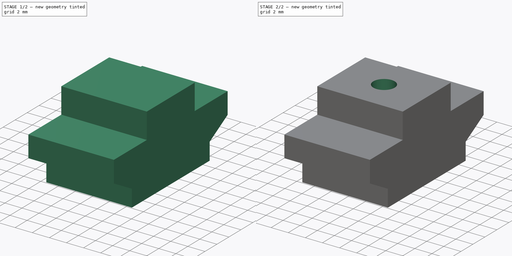
[diagram: build sequence overview — one tinted view per stage of 2, left to right]
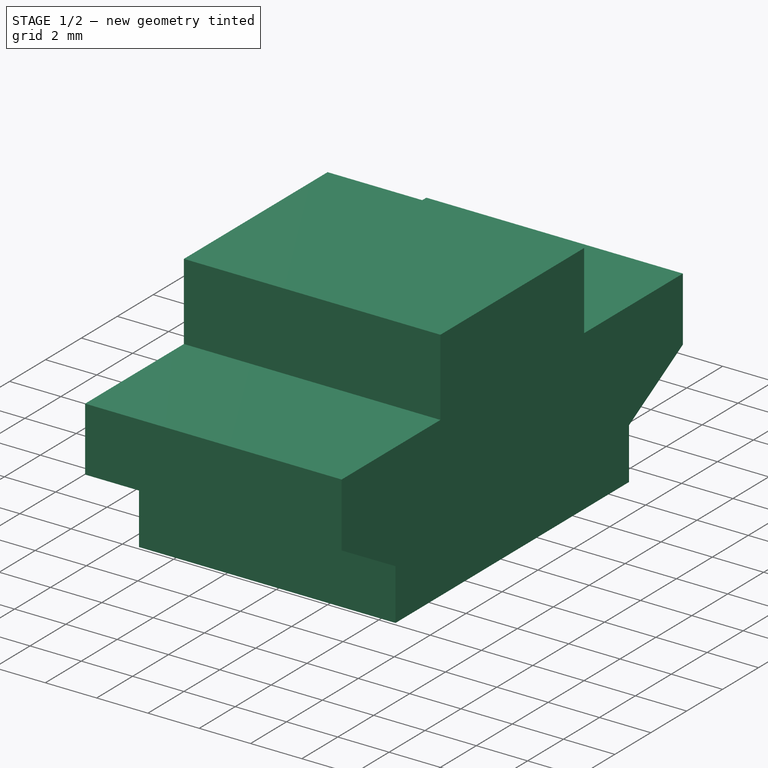
[diagram: stage 1 of 2 — iso view after this stage's code; geometry added in this stage tinted green]
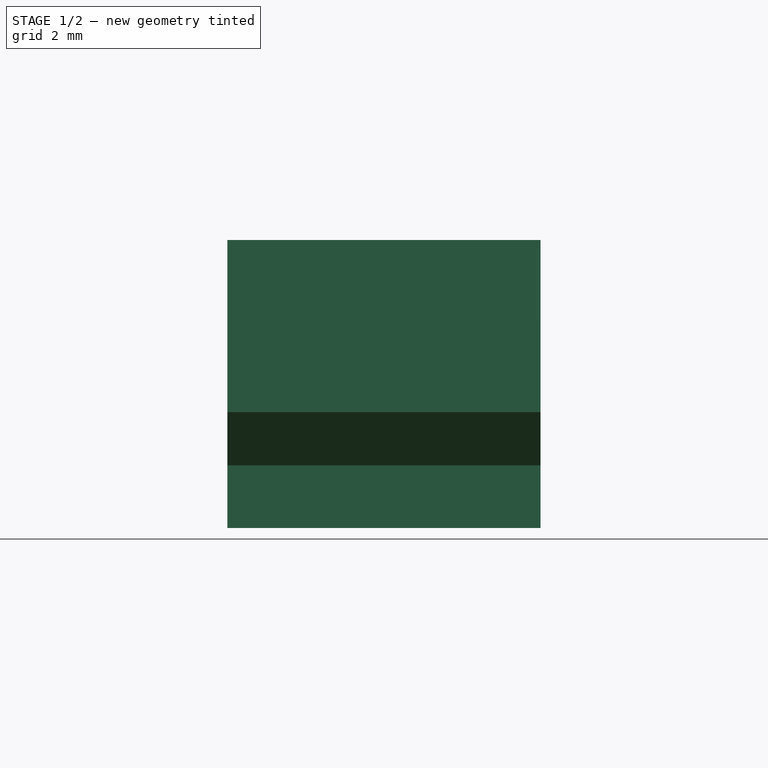
[diagram: stage 1 of 2 — front view after this stage's code; geometry added in this stage tinted green]
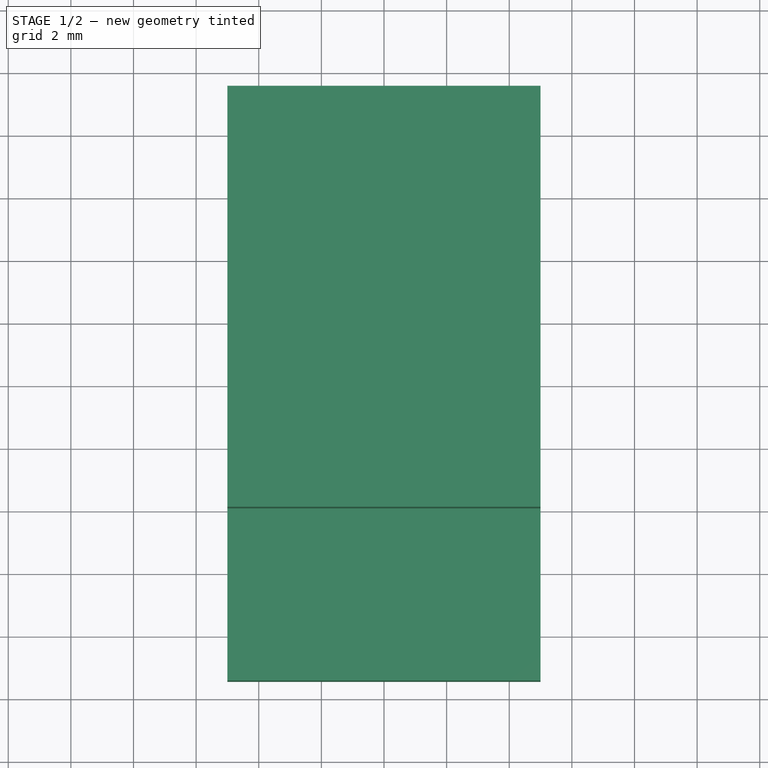
[diagram: stage 1 of 2 — top view after this stage's code; geometry added in this stage tinted green]
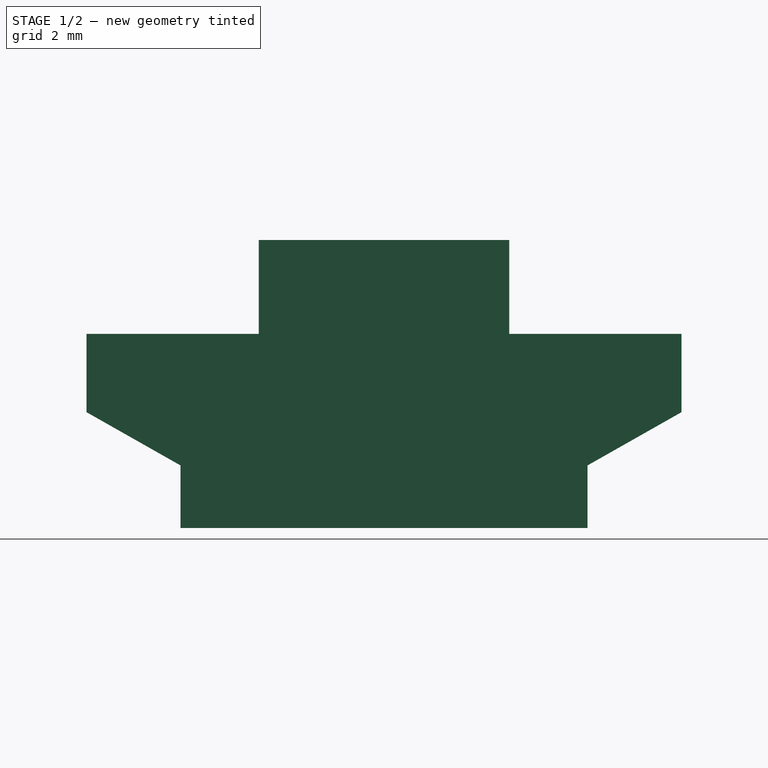
[diagram: stage 1 of 2 — right view after this stage's code; geometry added in this stage tinted green]
FCSTD DOCUMENT  (FreeCAD 0.18R16110 (Git))
Label: cnc3018-tslot-bed
License: CreativeCommons Attribution-ShareAlike
LicenseURL: http://creativecommons.org/licenses/by-sa/4.0/
objects: Sketcher::SketchObject×3, PartDesign::Pocket×2, PartDesign::Pad×1, PartDesign::Mirrored×1, PartDesign::Body×1
note: 11 computed .brp shape members not serialized (recipe doc carries the construction recipe); baked Part::Feature solids carry a one-line shape summary decoded from their .brp

FEATURE [Sketcher::SketchObject] Sketch008  label="tnut-base"
  MapMode = 5
  Placement = pos=(0,0,0) rot=(0.57735,0.57735,0.57735;2.0944rad)
  Support = -> [YZ_Plane008]
  sketch-geometry (9):
    g0: LineSegment StartX=-6.5 StartY=0 StartZ=0 EndX=-6.5 EndY=2 EndZ=0
    g1: LineSegment StartX=-6.5 StartY=2 StartZ=0 EndX=-9.5 EndY=3.7 EndZ=0
    g2: LineSegment StartX=-9.5 StartY=3.7 StartZ=0 EndX=-9.5 EndY=6.2 EndZ=0
    g3: LineSegment StartX=-9.5 StartY=6.2 StartZ=0 EndX=-4 EndY=6.2 EndZ=0
    g4: LineSegment StartX=-4 StartY=6.2 StartZ=0 EndX=-4 EndY=9.2 EndZ=0
    g5: LineSegment StartX=-4 StartY=9.2 StartZ=0 EndX=0 EndY=9.2 EndZ=0
    g6: LineSegment StartX=0 StartY=9.2 StartZ=0 EndX=0 EndY=0 EndZ=0
    g7: LineSegment StartX=0 StartY=0 StartZ=0 EndX=-6.5 EndY=0 EndZ=0
    g8: LineSegment [constr] StartX=-6.5 StartY=2 StartZ=0 EndX=-6.5 EndY=6.2 EndZ=0
  constraints (27):
    c: PointOnObject(g0,g-1)
    c: Coincident(g0,g1)
    c: Coincident(g1,g2)
    c: Coincident(g2,g3)
    c: Horizontal(g3)
    c: Coincident(g3,g4)
    c: Coincident(g4,g5)
    c: PointOnObject(g5,g-2)
    c: Coincident(g5,g6)
    c: Coincident(g6,g-1)
    c: Coincident(g6,g7)
    c: Coincident(g7,g0)
    c: Vertical(g0)
    c: Vertical(g2)
    c: Vertical(g4)
    c: Horizontal(g5)
    c: DistanceY(g0,g0) = 2
    c: DistanceY(g2,g2) = 2.5
    c: DistanceY(g0,g2) = 6.2
    c: DistanceX(g5,g5) = 4
    c: DistanceX(g2) = -9.5
    c: Coincident(g8,g0)
    c: PointOnObject(g8,g3)
    c: Vertical(g8)
    c: DistanceX(g7,g7) = 6.5
    c: DistanceY(g4,g4) = 3
    c: DistanceY(g6,g6) = 9.2
FEATURE [PartDesign::Pad] Pad005
  Length = 10
  Length2 = 1
  Midplane = true
  Placement = pos=(0,0,0) rot=(0.57735,0.57735,0.57735;2.0944rad)
  Profile = -> Sketch008
  Type = 0
FEATURE [PartDesign::Mirrored] Mirrored
  BaseFeature = -> Pad005
  MirrorPlane = -> Sketch008 [V_Axis]
  Originals = -> [Pad005]
  Placement = pos=(0,0,0) rot=(0.57735,0.57735,0.57735;2.0944rad)
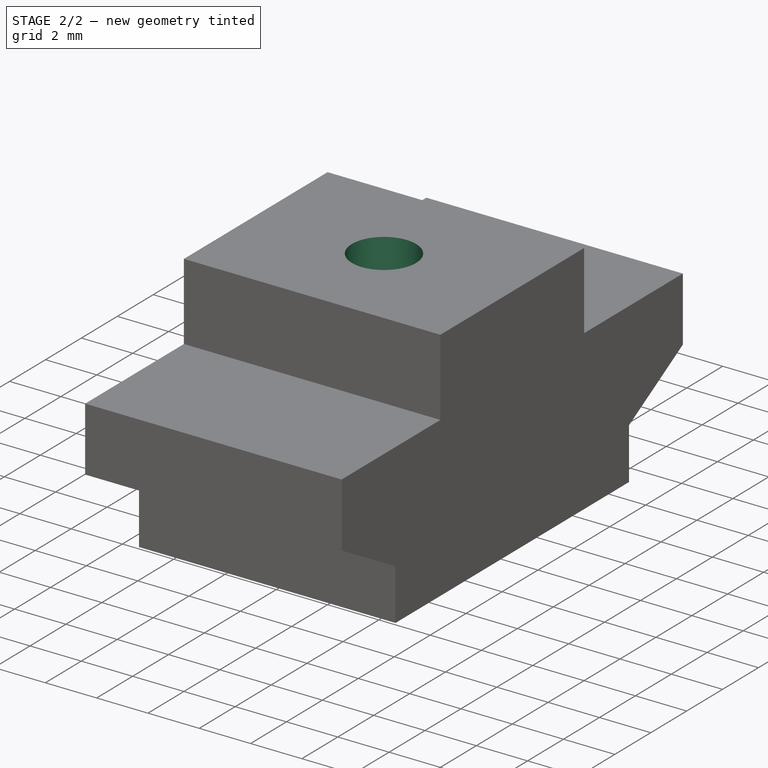
[diagram: stage 2 of 2 — iso view after this stage's code; geometry added in this stage tinted green]
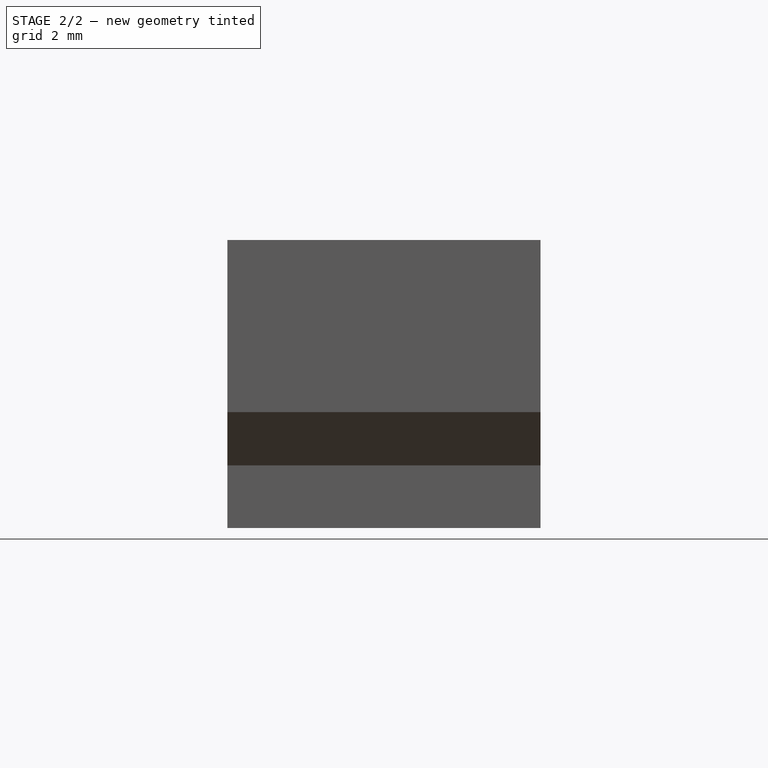
[diagram: stage 2 of 2 — front view after this stage's code; geometry added in this stage tinted green]
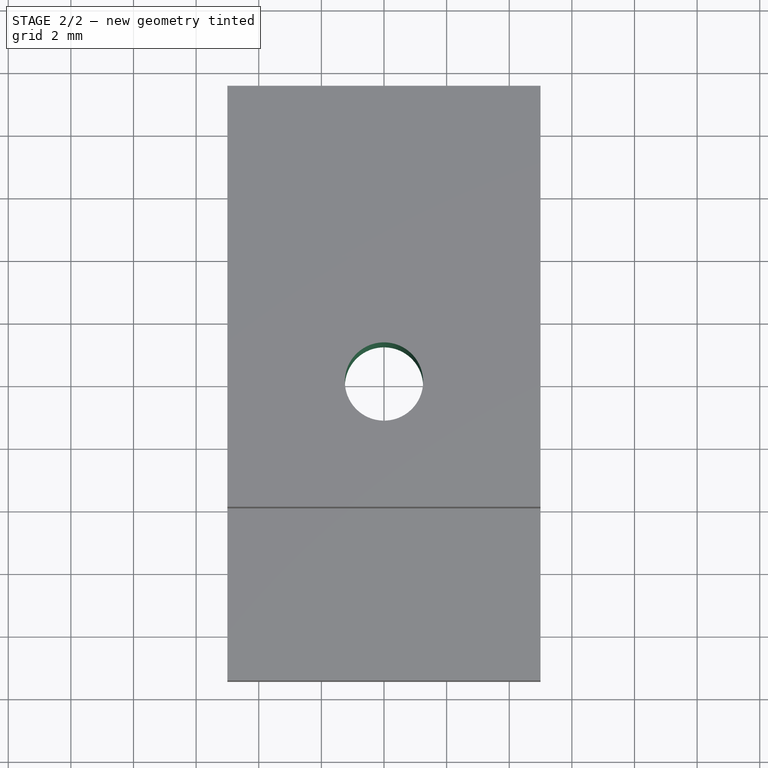
[diagram: stage 2 of 2 — top view after this stage's code; geometry added in this stage tinted green]
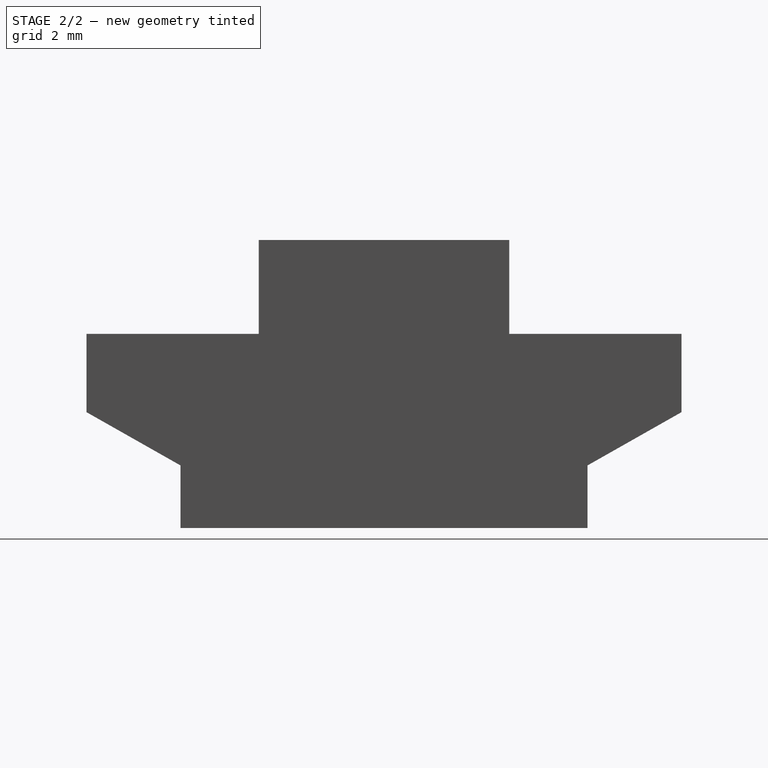
[diagram: stage 2 of 2 — right view after this stage's code; geometry added in this stage tinted green]
FEATURE [Sketcher::SketchObject] Sketch009  label="tnut-nutslot"
  MapMode = 5
  Placement = pos=(0,0,0) rot=(0.707107,0.707107,0;3.14159rad)
  Support = -> [Mirrored]
  sketch-geometry (7):
    g0: LineSegment StartX=-2.1362 StartY=3.7 StartZ=0 EndX=-4.27239 EndY=8.424e-13 EndZ=0
    g1: LineSegment StartX=-4.27239 StartY=8.424e-13 StartZ=0 EndX=-2.1362 EndY=-3.7 EndZ=0
    g2: LineSegment StartX=-2.1362 StartY=-3.7 StartZ=0 EndX=2.1362 EndY=-3.7 EndZ=0
    g3: LineSegment StartX=2.1362 StartY=-3.7 StartZ=0 EndX=4.27239 EndY=4.676e-13 EndZ=0
    g4: LineSegment StartX=4.27239 StartY=4.676e-13 StartZ=0 EndX=2.1362 EndY=3.7 EndZ=0
    g5: LineSegment StartX=2.1362 StartY=3.7 StartZ=0 EndX=-2.1362 EndY=3.7 EndZ=0
    g6: Circle [constr] CenterX=0 CenterY=0 CenterZ=0 NormalX=0 NormalY=0 NormalZ=1 AngleXU=0 Radius=4.27239
  constraints (16):
    c: Coincident(g0,g1)
    c: Coincident(g1,g2)
    c: Coincident(g2,g3)
    c: Coincident(g3,g4)
    c: Coincident(g4,g5)
    c: Coincident(g5,g0)
    c: Equal(g0, g1-g5) x5
    c: PointOnObject(g0,g6)
    c: PointOnObject(g1,g6)
    c: PointOnObject(g2,g6)
    c: PointOnObject(g3,g6)
    c: PointOnObject(g4,g6)
    c: PointOnObject(g5,g6)
    c: Coincident(g6,g-1)
    c: Horizontal(g5)
    c: DistanceY(g1,g0) = 7.4
FEATURE [PartDesign::Pocket] Pocket002
  BaseFeature = -> Mirrored
  Length = 0.001
  Length2 = 100
  Placement = pos=(0,0,0) rot=(0.57735,0.57735,0.57735;2.0944rad)
  Profile = -> Sketch009
  Type = 0
FEATURE [Sketcher::SketchObject] Sketch010  label="tnut-hole"
  MapMode = 5
  Placement = pos=(-1e-16,1e-16,0.001) rot=(0.707107,0.707107,0;3.14159rad)
  Support = -> [Pocket002]
  sketch-geometry (1):
    g0: Circle CenterX=0 CenterY=0 CenterZ=0 NormalX=0 NormalY=0 NormalZ=1 AngleXU=0 Radius=1.25
  constraints (2):
    c: Coincident(g0,g-1)
    c: Radius(g0) = 1.25
FEATURE [PartDesign::Pocket] Pocket003
  BaseFeature = -> Pocket002
  Length = 0.05
  Length2 = 100
  Placement = pos=(0,0,0) rot=(0.57735,0.57735,0.57735;2.0944rad)
  Profile = -> Sketch010
  Type = 1
FEATURE [PartDesign::Body] Body005
  Group = -> [Sketch008,Pad005,Mirrored,Sketch009,Pocket002,Sketch010,Pocket003]
  Origin = -> Origin008
  Tip = -> Pocket003
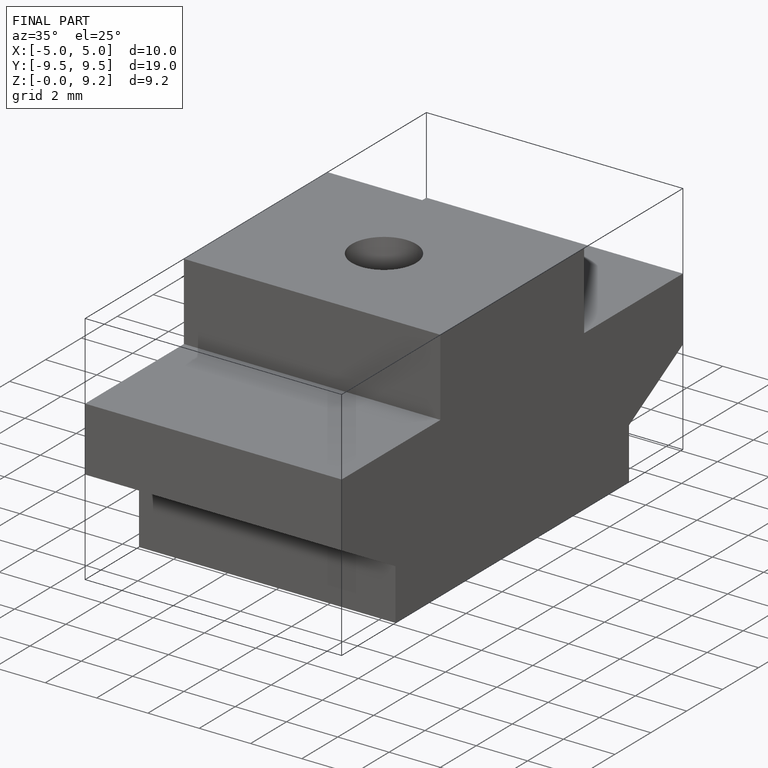
[diagram: finished part — iso view with bounding-box wireframe]
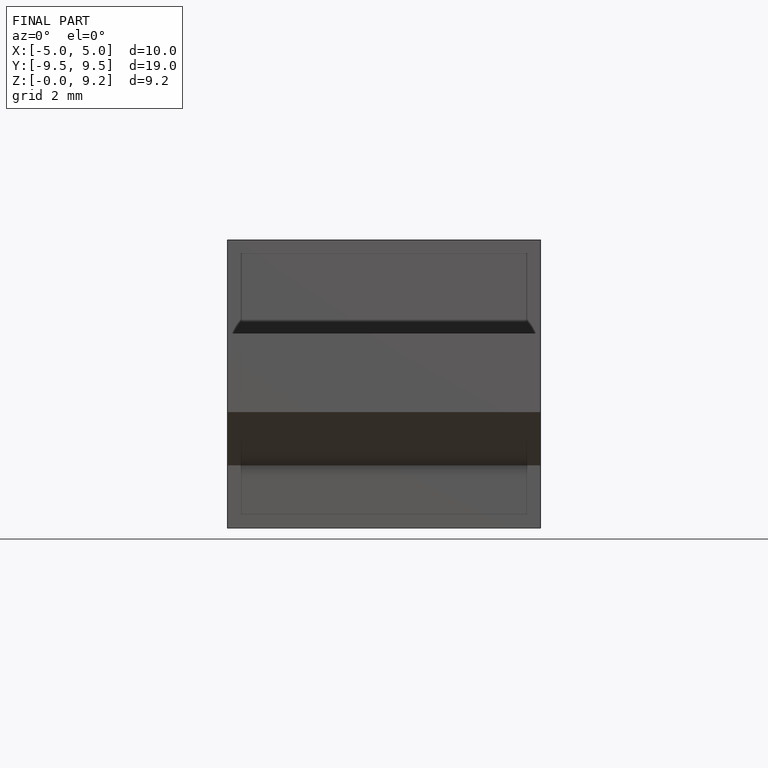
[diagram: finished part — front view with bounding-box wireframe]
